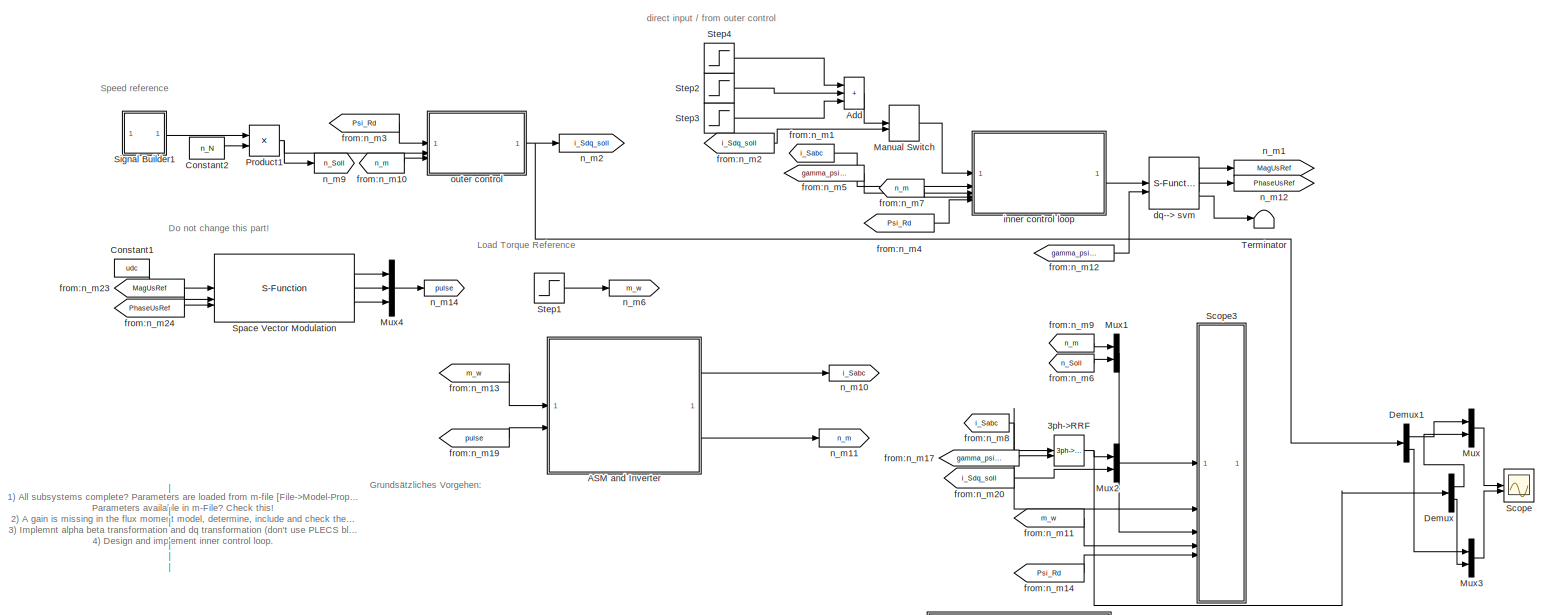
[diagram: root canvas - part 1/2, most of the canvas]
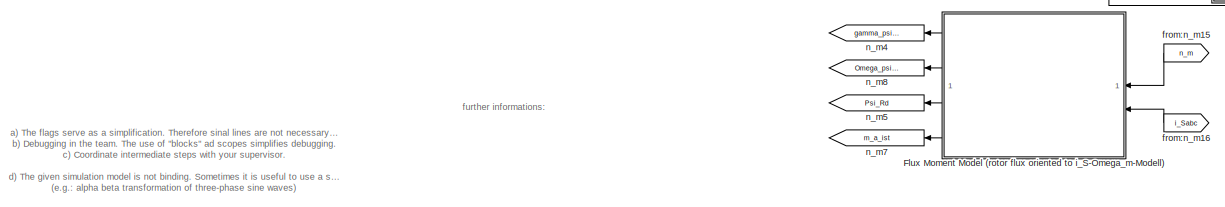
[diagram: root canvas - part 2/2, full width, bottom band]
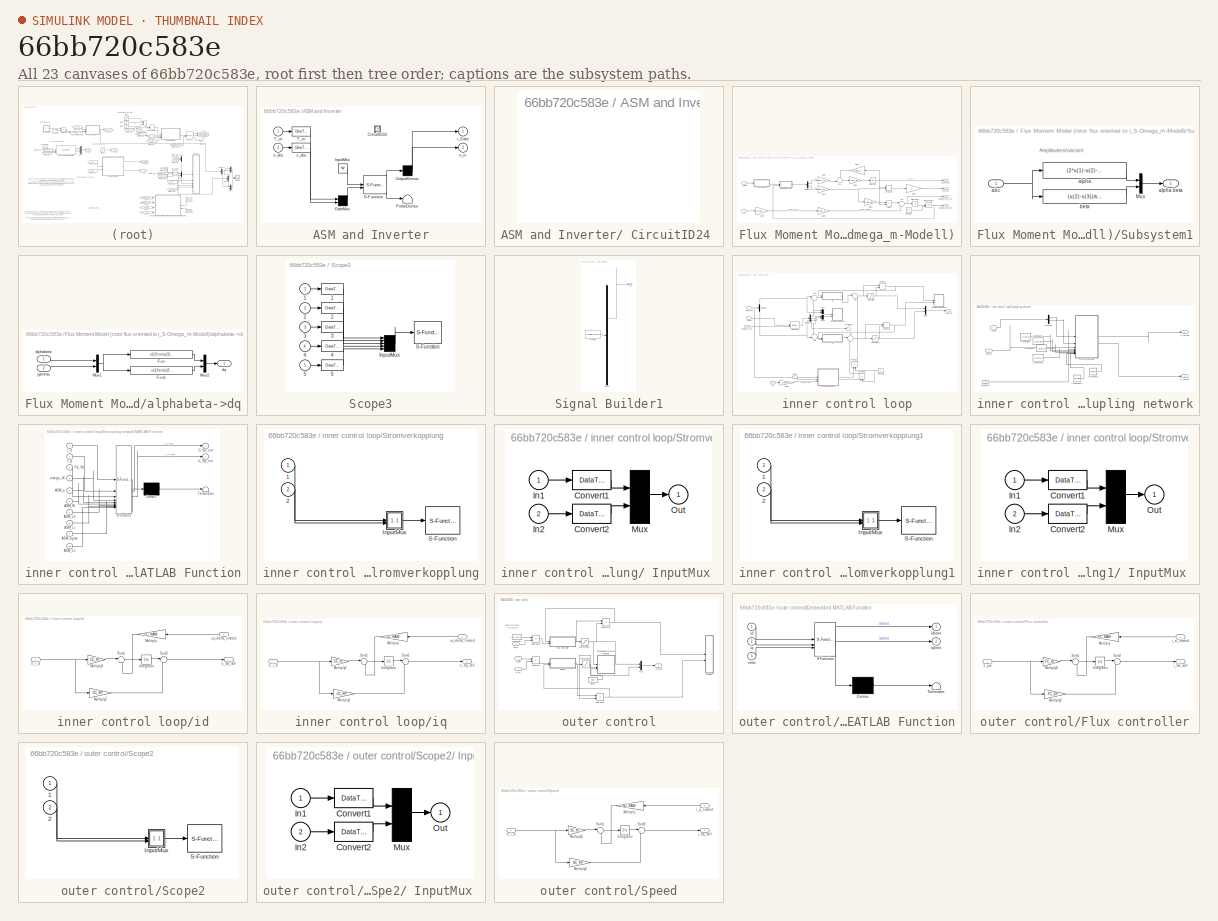
[diagram: thumbnail index - all 23 canvases of the model, root first then tree order]
MODEL mdl_66bb720c583e
KIND model
CONFIG AbsTol = auto
CONFIG EnableMultiTasking = on
CONFIG FixedStep = Ta
CONFIG MaxStep = 1e-5
CONFIG MinStep = auto
CONFIG RelTol = 1e-3
CONFIG SampleTimeConstraint = Unconstrained
CONFIG SolverName = ode45
CONFIG StartTime = 0.0
CONFIG StopTime = 0.5
BLOCK [Reference] 3ph->RRF  REF=plecslib_extras2/Transformations/3ph->RRF
  SourceBlock = plecslib_extras2/Transformations/3ph->RRF
  SourceProductName = PLECS Extras
  SourceType = Transformation 3ph->RRF
BLOCK [SubSystem] ASM and Inverter
  CopyFcn = plecs('sl', 203);
  DeleteFcn = plecs('sl', 205);
  DestroyFcn = plecs('sl', 207);
  ErrorFcn = plerrorfcn
  InitFcn = plecs('sl', 214);
  LoadFcn = plecs('sl', 200);
  NameChangeFcn = plecs('sl', 210);
  OpenFcn = plecs('sl', 202);
  PostSaveFcn = plecs('sl', 201);
  PreCopyFcn = plecs('sl', 216);
  PreSaveFcn = plecs('sl', 211);
  ShowPortLabels = FromPortBlockName
  StartFcn = plecs('sl', 208);
  StopFcn = plecs('sl', 209);
  UndoDeleteFcn = plecs('sl', 206);
BLOCK [SubSystem] ASM and Inverter/ CircuitID24 
BLOCK [Mux] ASM and Inverter/ GateMux 
  Inputs = [ 1 3 ]
BLOCK [Ground] ASM and Inverter/ InputMux 
BLOCK [Demux] ASM and Inverter/ OutputDemux 
  Outputs = [ 3 1 ]
BLOCK [Terminator] ASM and Inverter/ ProbeDemux 
BLOCK [S-Function] ASM and Inverter/ S-Function 
  EnableBusSupport = off
  FunctionName = plecs
  SFcnIsStateOwnerBlock = off
  SFunctionDeploymentMode = off
BLOCK [DataTypeConversion] ASM and Inverter/ T_m 
BLOCK [DataTypeConversion] ASM and Inverter/ s_abc 
BLOCK [Inport] ASM and Inverter/T_m
  PortDimensions = 1
BLOCK [Outport] ASM and Inverter/i_Sabc
  PortDimensions = 3
  VectorParamsAs1DForOutWhenUnconnected = off
BLOCK [Outport] ASM and Inverter/n_m
  Port = 2
  PortDimensions = 1
  VectorParamsAs1DForOutWhenUnconnected = off
BLOCK [Inport] ASM and Inverter/s_abc
  Port = 2
  PortDimensions = 3
BLOCK [Sum] Add
  IconShape = rectangular
  Inputs = +++
  NameLocation = top
BLOCK [Constant] Constant1
  Value = udc
BLOCK [Constant] Constant2
  Value = n_N
BLOCK [Demux] Demux
  Outputs = 2
BLOCK [Demux] Demux1
  Outputs = 2
BLOCK [SubSystem] Flux Moment Model (rotor flux oriented to i_S-Omega_m-Modell)
BLOCK [Sum] Flux Moment Model (rotor flux oriented to i_S-Omega_m-Modell)/Ad1
  Inputs = |++
BLOCK [Sum] Flux Moment Model (rotor flux oriented to i_S-Omega_m-Modell)/Ad4
  Inputs = -+|
BLOCK [Constant] Flux Moment Model (rotor flux oriented to i_S-Omega_m-Modell)/Constant
  Value = 2*pi
BLOCK [Demux] Flux Moment Model (rotor flux oriented to i_S-Omega_m-Modell)/Demux1
  Outputs = 2
BLOCK [Product] Flux Moment Model (rotor flux oriented to i_S-Omega_m-Modell)/Divide
  Inputs = */
BLOCK [Gain] Flux Moment Model (rotor flux oriented to i_S-Omega_m-Modell)/Gain
  Gain = ASM_Lh/ASM_Lr
BLOCK [Gain] Flux Moment Model (rotor flux oriented to i_S-Omega_m-Modell)/Gain1
  Gain = ASM_Lh/ASM_Lr
BLOCK [Gain] Flux Moment Model (rotor flux oriented to i_S-Omega_m-Modell)/Gain2
  Gain = 1/ASM_Lr
  NameLocation = top
BLOCK [Gain] Flux Moment Model (rotor flux oriented to i_S-Omega_m-Modell)/Gain3
  Gain = ASM_Rr
BLOCK [Gain] Flux Moment Model (rotor flux oriented to i_S-Omega_m-Modell)/Gain4
  Gain = 0
BLOCK [Gain] Flux Moment Model (rotor flux oriented to i_S-Omega_m-Modell)/Gain5
  Gain = ASM_p
BLOCK [Gain] Flux Moment Model (rotor flux oriented to i_S-Omega_m-Modell)/Gain6
  Gain = ASM_Rr
BLOCK [Gain] Flux Moment Model (rotor flux oriented to i_S-Omega_m-Modell)/Gain7
  Gain = (2*pi)/60
BLOCK [Integrator] Flux Moment Model (rotor flux oriented to i_S-Omega_m-Modell)/Integrator
  InitialCondition = 0.0001
BLOCK [Integrator] Flux Moment Model (rotor flux oriented to i_S-Omega_m-Modell)/Integrator1
  InitialCondition = 0.0001
BLOCK [Math] Flux Moment Model (rotor flux oriented to i_S-Omega_m-Modell)/Math Function1
  Operator = mod
  SignedPower = on
BLOCK [Outport] Flux Moment Model (rotor flux oriented to i_S-Omega_m-Modell)/Omega_psi_R_est
  Port = 2
  VectorParamsAs1DForOutWhenUnconnected = off
BLOCK [Product] Flux Moment Model (rotor flux oriented to i_S-Omega_m-Modell)/Product4
  RndMeth = Zero
BLOCK [SubSystem] Flux Moment Model (rotor flux oriented to i_S-Omega_m-Modell)/Subsystem1
BLOCK [Mux] Flux Moment Model (rotor flux oriented to i_S-Omega_m-Modell)/Subsystem1/Mux
  DisplayOption = bar
  Inputs = 2
BLOCK [Inport] Flux Moment Model (rotor flux oriented to i_S-Omega_m-Modell)/Subsystem1/abc
  PortDimensions = 3
BLOCK [Fcn] Flux Moment Model (rotor flux oriented to i_S-Omega_m-Modell)/Subsystem1/alpha
  Expr = (2*u(1)-u(2)-u(3))/3
BLOCK [Outport] Flux Moment Model (rotor flux oriented to i_S-Omega_m-Modell)/Subsystem1/alpha beta
  VectorParamsAs1DForOutWhenUnconnected = off
BLOCK [Fcn] Flux Moment Model (rotor flux oriented to i_S-Omega_m-Modell)/Subsystem1/beta
  Expr = (u(2)-u(3))/sqrt(3)
BLOCK [SubSystem] Flux Moment Model (rotor flux oriented to i_S-Omega_m-Modell)/alphabeta->dq
BLOCK [Fcn] Flux Moment Model (rotor flux oriented to i_S-Omega_m-Modell)/alphabeta->dq/Fcn
  Expr = u(1)*cos(u(3))+u(2)*sin(u(3))
BLOCK [Fcn] Flux Moment Model (rotor flux oriented to i_S-Omega_m-Modell)/alphabeta->dq/Fcn1
  Expr = -u(1)*sin(u(3))+u(2)*cos(u(3))
BLOCK [Mux] Flux Moment Model (rotor flux oriented to i_S-Omega_m-Modell)/alphabeta->dq/Mux1
  DisplayOption = bar
  Inputs = 2
BLOCK [Mux] Flux Moment Model (rotor flux oriented to i_S-Omega_m-Modell)/alphabeta->dq/Mux2
  DisplayOption = bar
  Inputs = 2
BLOCK [Inport] Flux Moment Model (rotor flux oriented to i_S-Omega_m-Modell)/alphabeta->dq/alphabeta
  NameLocation = top
BLOCK [Outport] Flux Moment Model (rotor flux oriented to i_S-Omega_m-Modell)/alphabeta->dq/dq
  VectorParamsAs1DForOutWhenUnconnected = off
BLOCK [Inport] Flux Moment Model (rotor flux oriented to i_S-Omega_m-Modell)/alphabeta->dq/gamma
  Port = 2
BLOCK [Outport] Flux Moment Model (rotor flux oriented to i_S-Omega_m-Modell)/gamma_psi_R_est
  VectorParamsAs1DForOutWhenUnconnected = off
BLOCK [Inport] Flux Moment Model (rotor flux oriented to i_S-Omega_m-Modell)/i_Sabc
  Port = 2
BLOCK [Outport] Flux Moment Model (rotor flux oriented to i_S-Omega_m-Modell)/m_a_est
  Port = 4
  VectorParamsAs1DForOutWhenUnconnected = off
BLOCK [Inport] Flux Moment Model (rotor flux oriented to i_S-Omega_m-Modell)/n_m
BLOCK [Outport] Flux Moment Model (rotor flux oriented to i_S-Omega_m-Modell)/psi_RA_est
  Port = 3
  VectorParamsAs1DForOutWhenUnconnected = off
BLOCK [ManualSwitch] Manual Switch
  CurrentSetting = 0
BLOCK [Mux] Mux
  DisplayOption = bar
  Inputs = 2
BLOCK [Mux] Mux1
  DisplayOption = bar
  Inputs = 2
BLOCK [Mux] Mux2
  DisplayOption = bar
  Inputs = 2
BLOCK [Mux] Mux3
  DisplayOption = bar
  Inputs = 2
BLOCK [Mux] Mux4
  DisplayOption = bar
  Inputs = 3
BLOCK [Product] Product1
  RndMeth = Zero
BLOCK [Scope] Scope
  Floating = off
  NumInputPorts = 2
  ScopeSpecificationString = Simulink.scopes.TimeScopeBlockCfg('CurrentConfiguration', extmgr.ConfigurationSet(extmgr.Configuration('Core','General UI',true),extmgr.Configuration('Core','Source UI',true),extmgr.Configuration('Sources','WiredSimulink',true),extmgr.Configuration('Visuals','Time Domain',true,'SerializedDisplays',{struct('MinYLimReal','-1.92601','MaxYLimReal','9.78999','YLabelReal','','MinYLimMag','0.00000','MaxY...<+2259ch>
BLOCK [SubSystem] Scope3
  CopyFcn = plecs('sl', 303);
  DeleteFcn = plecs('sl', 305);
  DestroyFcn = plecs('sl', 307);
  ErrorFcn = plerrorfcn
  InitFcn = plecs('sl', 314);
  LoadFcn = plecs('sl', 300);
  NameChangeFcn = plecs('sl', 310);
  OpenFcn = plecs('sl', 302);
  PreSaveFcn = plecs('sl', 311);
  StartFcn = plecs('sl', 308);
  StopFcn = plecs('sl', 309);
  UndoDeleteFcn = plecs('sl', 306);
BLOCK [DataTypeConversion] Scope3/ 1 
BLOCK [DataTypeConversion] Scope3/ 2 
BLOCK [DataTypeConversion] Scope3/ 3 
BLOCK [DataTypeConversion] Scope3/ 4 
BLOCK [DataTypeConversion] Scope3/ 5 
BLOCK [Mux] Scope3/ InputMux 
  Inputs = 5
BLOCK [S-Function] Scope3/ S-Function 
  EnableBusSupport = off
  FunctionName = plecs
  SFcnIsStateOwnerBlock = off
  SFunctionDeploymentMode = off
BLOCK [Inport] Scope3/1
BLOCK [Inport] Scope3/2
  Port = 2
BLOCK [Inport] Scope3/3
  Port = 3
BLOCK [Inport] Scope3/4
  Port = 4
BLOCK [Inport] Scope3/5
  Port = 5
BLOCK [SubSystem] Signal Builder1
  ClipboardFcn = sigbuilder_block('clipboard');
  CloseFcn = sigbuilder_block('close');
  ContinueFcn = sigbuilder_block('continue')
  CopyFcn = sigbuilder_block('copy');
  DeleteFcn = sigbuilder_block('delete');
  LoadFcn = sigbuilder_block('load');
  MaskHideContents = on
  ModelCloseFcn = sigbuilder_block('modelClose');
  NameChangeFcn = sigbuilder_block('namechange');
  OpenFcn = sigbuilder_block('open',[29.25 172.2 550.5 395.55 ]);
  PauseFcn = sigbuilder_block('pause')
  PreSaveFcn = sigbuilder_block('preSave');
  StartFcn = sigbuilder_block('start');
  StopFcn = sigbuilder_block('stop');
  Tag = STV Subsys
BLOCK [Demux] Signal Builder1/Demux
  DisplayOption = none
  Outputs = 1
  Tag = STV Demux
BLOCK [FromWorkspace] Signal Builder1/FromWs
  Tag = STV FromWs
  VariableName = tuvar
BLOCK [Outport] Signal Builder1/n%
  Tag = STV Outport
  VectorParamsAs1DForOutWhenUnconnected = off
BLOCK [S-Function] Space Vector Modulation
  EnableBusSupport = off
  FunctionName = s_svm
  Parameters = f_sw*100,f_sw
  SFcnIsStateOwnerBlock = off
  SFunctionDeploymentMode = off
BLOCK [Step] Step1
  After = 2
  SampleTime = 0
  Time = 9
BLOCK [Step] Step2
  After = [1.5 2]
  Before = [1.5 0]
  SampleTime = 0
  Time = 0.1
BLOCK [Step] Step3
  After = [0 -2]
  Before = [0 0]
  SampleTime = 0
  Time = 0.2
BLOCK [Step] Step4
  After = [0 0]
  Before = [-1.5 0]
  SampleTime = 0
  Time = 0.05
BLOCK [Terminator] Terminator
BLOCK [S-Function] dq--> svm
  EnableBusSupport = off
  FunctionName = s_dq_svm_transformation
  NameLocation = top
  Parameters = f_sw
  SFcnIsStateOwnerBlock = off
  SFunctionDeploymentMode = off
BLOCK [From] from:n_m1
  GotoTag = i_Sabc
BLOCK [From] from:n_m10
  GotoTag = n_m
BLOCK [From] from:n_m11
  GotoTag = m_w
BLOCK [From] from:n_m12
  GotoTag = gamma_psi_R
BLOCK [From] from:n_m13
  GotoTag = m_w
BLOCK [From] from:n_m14
  GotoTag = Psi_Rd
BLOCK [From] from:n_m15
  GotoTag = n_m
  NameLocation = top
BLOCK [From] from:n_m16
  GotoTag = i_Sabc
  NameLocation = top
BLOCK [From] from:n_m17
  GotoTag = gamma_psi_R
BLOCK [From] from:n_m19
  GotoTag = pulse
BLOCK [From] from:n_m2
  GotoTag = i_Sdq_soll
BLOCK [From] from:n_m20
  GotoTag = i_Sdq_soll
BLOCK [From] from:n_m23
  GotoTag = MagUsRef
BLOCK [From] from:n_m24
  GotoTag = PhaseUsRef
BLOCK [From] from:n_m3
  GotoTag = Psi_Rd
BLOCK [From] from:n_m4
  GotoTag = Psi_Rd
BLOCK [From] from:n_m5
  GotoTag = gamma_psi_R
BLOCK [From] from:n_m6
  GotoTag = n_Soll
BLOCK [From] from:n_m7
  GotoTag = n_m
BLOCK [From] from:n_m8
  GotoTag = i_Sabc
BLOCK [From] from:n_m9
  GotoTag = n_m
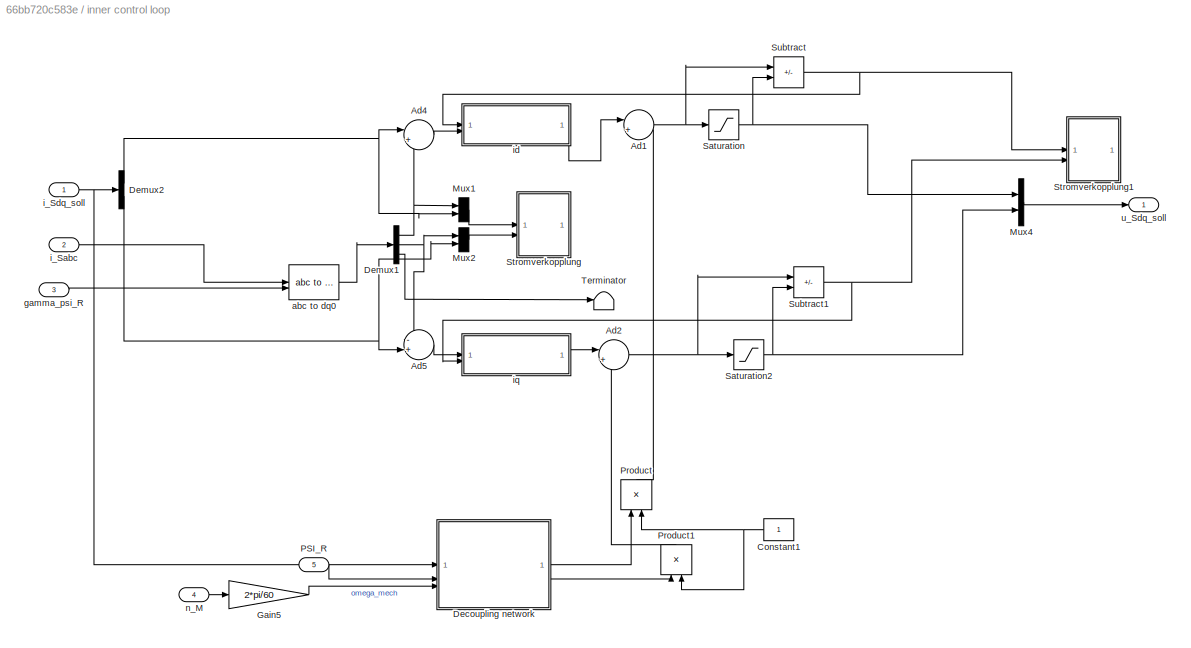
BLOCK [SubSystem] inner control loop
BLOCK [Sum] inner control loop/Ad1
  Inputs = |++
BLOCK [Sum] inner control loop/Ad2
  Inputs = |++
BLOCK [Sum] inner control loop/Ad4
  Inputs = |+-
BLOCK [Sum] inner control loop/Ad5
  Inputs = -+|
BLOCK [Constant] inner control loop/Constant1
  NameLocation = top
BLOCK [SubSystem] inner control loop/Decoupling network
BLOCK [Constant] inner control loop/Decoupling network/Constant
  Value = ASM_p
BLOCK [Constant] inner control loop/Decoupling network/Constant1
  Value = ASM_Rr
BLOCK [Constant] inner control loop/Decoupling network/Constant2
  Value = ASM_Lh
BLOCK [Constant] inner control loop/Decoupling network/Constant3
  Value = ASM_Lr
BLOCK [Constant] inner control loop/Decoupling network/Constant5
  Value = ASM_sigma
BLOCK [Constant] inner control loop/Decoupling network/Constant6
  Value = ASM_Ls
BLOCK [Demux] inner control loop/Decoupling network/Demux
  Outputs = 2
BLOCK [Inport] inner control loop/Decoupling network/I_S_dq
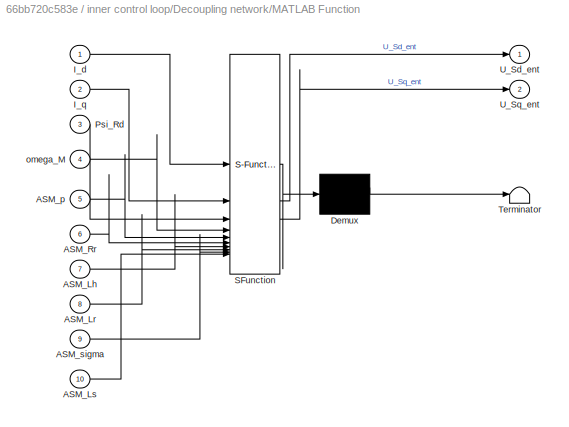
BLOCK [SubSystem] inner control loop/Decoupling network/MATLAB Function
  ErrorFcn = Stateflow.Translate.translate
  PermitHierarchicalResolution = ExplicitOnly
  SFBlockType = MATLAB Function
  TreatAsAtomicUnit = on
BLOCK [Demux] inner control loop/Decoupling network/MATLAB Function/ Demux 
  Outputs = 1
BLOCK [S-Function] inner control loop/Decoupling network/MATLAB Function/ SFunction 
  EnableBusSupport = on
  FunctionName = sf_sfun
  PortCounts = [10 3]
  SFcnIsStateOwnerBlock = off
  SFunctionDeploymentMode = off
  Tag = Stateflow S-Function 2
BLOCK [Terminator] inner control loop/Decoupling network/MATLAB Function/ Terminator 
BLOCK [Inport] inner control loop/Decoupling network/MATLAB Function/ASM_Lh
  Port = 7
BLOCK [Inport] inner control loop/Decoupling network/MATLAB Function/ASM_Lr
  Port = 8
BLOCK [Inport] inner control loop/Decoupling network/MATLAB Function/ASM_Ls
  Port = 10
BLOCK [Inport] inner control loop/Decoupling network/MATLAB Function/ASM_Rr
  Port = 6
BLOCK [Inport] inner control loop/Decoupling network/MATLAB Function/ASM_p
  Port = 5
BLOCK [Inport] inner control loop/Decoupling network/MATLAB Function/ASM_sigma
  Port = 9
BLOCK [Inport] inner control loop/Decoupling network/MATLAB Function/I_d
BLOCK [Inport] inner control loop/Decoupling network/MATLAB Function/I_q
  Port = 2
BLOCK [Inport] inner control loop/Decoupling network/MATLAB Function/Psi_Rd
  Port = 3
BLOCK [Outport] inner control loop/Decoupling network/MATLAB Function/U_Sd_ent
BLOCK [Outport] inner control loop/Decoupling network/MATLAB Function/U_Sq_ent
  Port = 2
BLOCK [Inport] inner control loop/Decoupling network/MATLAB Function/omega_M
  Port = 4
BLOCK [Inport] inner control loop/Decoupling network/Psi_Rd
  Port = 2
BLOCK [Outport] inner control loop/Decoupling network/U_Sd,ent
  VectorParamsAs1DForOutWhenUnconnected = off
BLOCK [Outport] inner control loop/Decoupling network/U_Sq,ent
  Port = 2
  VectorParamsAs1DForOutWhenUnconnected = off
BLOCK [Inport] inner control loop/Decoupling network/omega_M
  Port = 3
BLOCK [Demux] inner control loop/Demux1
  Outputs = 3
BLOCK [Demux] inner control loop/Demux2
  Outputs = 2
BLOCK [Gain] inner control loop/Gain5
  Gain = 2*pi/60
BLOCK [Mux] inner control loop/Mux1
  DisplayOption = bar
  Inputs = [1 1]
BLOCK [Mux] inner control loop/Mux2
  DisplayOption = bar
  Inputs = [1 1]
BLOCK [Mux] inner control loop/Mux4
  DisplayOption = bar
  Inputs = 2
BLOCK [Inport] inner control loop/PSI_R
  Port = 5
BLOCK [Product] inner control loop/Product
  NameLocation = right
  RndMeth = Zero
BLOCK [Product] inner control loop/Product1
  NameLocation = right
  RndMeth = Zero
BLOCK [Saturate] inner control loop/Saturation
  LowerLimit = -umax
  UpperLimit = umax
BLOCK [Saturate] inner control loop/Saturation2
  LowerLimit = -umax
  UpperLimit = umax
BLOCK [SubSystem] inner control loop/Stromverkopplung
  CopyFcn = plecs('sl', 303);
  DeleteFcn = plecs('sl', 305);
  DestroyFcn = plecs('sl', 307);
  ErrorFcn = plerrorfcn
  InitFcn = plecs('sl', 314);
  LoadFcn = plecs('sl', 300);
  NameChangeFcn = plecs('sl', 310);
  OpenFcn = plecs('sl', 302);
  PreSaveFcn = plecs('sl', 311);
  StartFcn = plecs('sl', 308);
  StopFcn = plecs('sl', 309);
  UndoDeleteFcn = plecs('sl', 306);
BLOCK [SubSystem] inner control loop/Stromverkopplung/ InputMux 
BLOCK [DataTypeConversion] inner control loop/Stromverkopplung/ InputMux /Convert1
BLOCK [DataTypeConversion] inner control loop/Stromverkopplung/ InputMux /Convert2
BLOCK [Inport] inner control loop/Stromverkopplung/ InputMux /In1
BLOCK [Inport] inner control loop/Stromverkopplung/ InputMux /In2
  Port = 2
BLOCK [Mux] inner control loop/Stromverkopplung/ InputMux /Mux
  Inputs = 2
BLOCK [Outport] inner control loop/Stromverkopplung/ InputMux /Out
  VectorParamsAs1DForOutWhenUnconnected = off
BLOCK [S-Function] inner control loop/Stromverkopplung/ S-Function 
  EnableBusSupport = off
  FunctionName = plecs
  SFcnIsStateOwnerBlock = off
  SFunctionDeploymentMode = off
BLOCK [Inport] inner control loop/Stromverkopplung/1
BLOCK [Inport] inner control loop/Stromverkopplung/2
  Port = 2
BLOCK [SubSystem] inner control loop/Stromverkopplung1
  CopyFcn = plecs('sl', 303);
  DeleteFcn = plecs('sl', 305);
  DestroyFcn = plecs('sl', 307);
  ErrorFcn = plerrorfcn
  InitFcn = plecs('sl', 314);
  LoadFcn = plecs('sl', 300);
  NameChangeFcn = plecs('sl', 310);
  OpenFcn = plecs('sl', 302);
  PreSaveFcn = plecs('sl', 311);
  StartFcn = plecs('sl', 308);
  StopFcn = plecs('sl', 309);
  UndoDeleteFcn = plecs('sl', 306);
BLOCK [SubSystem] inner control loop/Stromverkopplung1/ InputMux 
BLOCK [DataTypeConversion] inner control loop/Stromverkopplung1/ InputMux /Convert1
BLOCK [DataTypeConversion] inner control loop/Stromverkopplung1/ InputMux /Convert2
BLOCK [Inport] inner control loop/Stromverkopplung1/ InputMux /In1
BLOCK [Inport] inner control loop/Stromverkopplung1/ InputMux /In2
  Port = 2
BLOCK [Mux] inner control loop/Stromverkopplung1/ InputMux /Mux
  Inputs = 2
BLOCK [Outport] inner control loop/Stromverkopplung1/ InputMux /Out
  VectorParamsAs1DForOutWhenUnconnected = off
BLOCK [S-Function] inner control loop/Stromverkopplung1/ S-Function 
  EnableBusSupport = off
  FunctionName = plecs
  SFcnIsStateOwnerBlock = off
  SFunctionDeploymentMode = off
BLOCK [Inport] inner control loop/Stromverkopplung1/1
BLOCK [Inport] inner control loop/Stromverkopplung1/2
  Port = 2
BLOCK [Sum] inner control loop/Subtract
  IconShape = rectangular
  Inputs = +-
BLOCK [Sum] inner control loop/Subtract1
  IconShape = rectangular
  Inputs = +-
BLOCK [Terminator] inner control loop/Terminator
BLOCK [Reference] inner control loop/abc to dq0  REF=spsabctodq0Lib/abc to dq0
  LibrarySourceBlock = sps_lib/Control/abc to dq0
  SourceBlock = spsabctodq0Lib/abc to dq0
  SourceType = abc to dq0 Transformation
BLOCK [Inport] inner control loop/gamma_psi_R
  NameLocation = top
  Port = 3
BLOCK [Inport] inner control loop/i_Sabc
  NameLocation = top
  Port = 2
BLOCK [Inport] inner control loop/i_Sdq_soll
BLOCK [SubSystem] inner control loop/id
BLOCK [Integrator] inner control loop/id/Integrator
BLOCK [Gain] inner control loop/id/Multiply
  Gain = CC_KAW
  NameLocation = top
BLOCK [Gain] inner control loop/id/Multiply2
  Gain = CC_KP
BLOCK [Gain] inner control loop/id/Multiply3
  Gain = CC_KI
BLOCK [Sum] inner control loop/id/Sum1
  Inputs = |+-
BLOCK [Sum] inner control loop/id/Sum2
  Inputs = |++
BLOCK [Inport] inner control loop/id/e_i_d
  Port = 2
BLOCK [Outport] inner control loop/id/u_Sd_soll
  VectorParamsAs1DForOutWhenUnconnected = off
BLOCK [Inport] inner control loop/id/us_delta_limited
  NameLocation = top
BLOCK [SubSystem] inner control loop/iq
BLOCK [Integrator] inner control loop/iq/Integrator
BLOCK [Gain] inner control loop/iq/Multiply
  Gain = CC_KAW
  NameLocation = top
BLOCK [Gain] inner control loop/iq/Multiply2
  Gain = CC_KP
BLOCK [Gain] inner control loop/iq/Multiply3
  Gain = CC_KI
BLOCK [Sum] inner control loop/iq/Sum1
  Inputs = |+-
BLOCK [Sum] inner control loop/iq/Sum2
  Inputs = |++
BLOCK [Inport] inner control loop/iq/e_i_d
BLOCK [Outport] inner control loop/iq/u_Sq_soll
  VectorParamsAs1DForOutWhenUnconnected = off
BLOCK [Inport] inner control loop/iq/us_delta_limited
  NameLocation = top
  Port = 2
BLOCK [Inport] inner control loop/n_M
  Port = 4
BLOCK [Outport] inner control loop/u_Sdq_soll
  VectorParamsAs1DForOutWhenUnconnected = off
BLOCK [Goto] n_m1
  GotoTag = MagUsRef
BLOCK [Goto] n_m10
  GotoTag = i_Sabc
BLOCK [Goto] n_m11
  GotoTag = n_m
BLOCK [Goto] n_m12
  GotoTag = PhaseUsRef
BLOCK [Goto] n_m14
  GotoTag = pulse
BLOCK [Goto] n_m2
  GotoTag = i_Sdq_soll
BLOCK [Goto] n_m4
  GotoTag = gamma_psi_R
  NameLocation = top
BLOCK [Goto] n_m5
  GotoTag = Psi_Rd
  NameLocation = top
BLOCK [Goto] n_m6
  GotoTag = m_w
BLOCK [Goto] n_m7
  GotoTag = m_a_ist
  NameLocation = top
BLOCK [Goto] n_m8
  GotoTag = Omega_psi_R
  NameLocation = top
BLOCK [Goto] n_m9
  GotoTag = n_Soll
BLOCK [SubSystem] outer control
BLOCK [Constant] outer control/Constant1
  Value = ASM_PSI_RN
BLOCK [SubSystem] outer control/Embedded MATLAB Function
  Commented = on
  ErrorFcn = Stateflow.Translate.translate
  PermitHierarchicalResolution = ExplicitOnly
  SFBlockType = MATLAB Function
  TreatAsAtomicUnit = on
BLOCK [Demux] outer control/Embedded MATLAB Function/ Demux 
  Outputs = 1
BLOCK [S-Function] outer control/Embedded MATLAB Function/ SFunction 
  EnableBusSupport = on
  FunctionName = sf_sfun
  PortCounts = [3 3]
  SFcnIsStateOwnerBlock = off
  SFunctionDeploymentMode = off
  Tag = Stateflow S-Function 1
BLOCK [Terminator] outer control/Embedded MATLAB Function/ Terminator 
BLOCK [Inport] outer control/Embedded MATLAB Function/id
BLOCK [Outport] outer control/Embedded MATLAB Function/idlimit
  VectorParamsAs1DForOutWhenUnconnected = off
BLOCK [Inport] outer control/Embedded MATLAB Function/imax
  Port = 3
BLOCK [Inport] outer control/Embedded MATLAB Function/iq
  Port = 2
BLOCK [Outport] outer control/Embedded MATLAB Function/iqlimit
  Port = 2
  VectorParamsAs1DForOutWhenUnconnected = off
BLOCK [SubSystem] outer control/Flux controller
BLOCK [Integrator] outer control/Flux controller/Integrator
BLOCK [Gain] outer control/Flux controller/Multiply
  Gain = FC_KAW
  NameLocation = top
BLOCK [Gain] outer control/Flux controller/Multiply2
  Gain = FC_KP
BLOCK [Gain] outer control/Flux controller/Multiply3
  Gain = FC_KI
BLOCK [Sum] outer control/Flux controller/Sum1
  Inputs = |+-
BLOCK [Sum] outer control/Flux controller/Sum2
  Inputs = |++
BLOCK [Inport] outer control/Flux controller/e_psi
  Port = 2
BLOCK [Outport] outer control/Flux controller/i_Sd_soll
  VectorParamsAs1DForOutWhenUnconnected = off
BLOCK [Inport] outer control/Flux controller/i_d_limited
  NameLocation = top
BLOCK [Mux] outer control/Mux
  DisplayOption = bar
  Inputs = [1 1]
BLOCK [Saturate] outer control/Saturation1
  LowerLimit = -imax
  UpperLimit = imax
BLOCK [Saturate] outer control/Saturation2
  LowerLimit = -imax
  UpperLimit = imax
BLOCK [SubSystem] outer control/Scope2
  CopyFcn = plecs('sl', 303);
  DeleteFcn = plecs('sl', 305);
  DestroyFcn = plecs('sl', 307);
  ErrorFcn = plerrorfcn
  InitFcn = plecs('sl', 314);
  LoadFcn = plecs('sl', 300);
  NameChangeFcn = plecs('sl', 310);
  OpenFcn = plecs('sl', 302);
  PreSaveFcn = plecs('sl', 311);
  StartFcn = plecs('sl', 308);
  StopFcn = plecs('sl', 309);
  UndoDeleteFcn = plecs('sl', 306);
BLOCK [SubSystem] outer control/Scope2/ InputMux 
BLOCK [DataTypeConversion] outer control/Scope2/ InputMux /Convert1
BLOCK [DataTypeConversion] outer control/Scope2/ InputMux /Convert2
BLOCK [Inport] outer control/Scope2/ InputMux /In1
BLOCK [Inport] outer control/Scope2/ InputMux /In2
  Port = 2
BLOCK [Mux] outer control/Scope2/ InputMux /Mux
  Inputs = 2
BLOCK [Outport] outer control/Scope2/ InputMux /Out
  VectorParamsAs1DForOutWhenUnconnected = off
BLOCK [S-Function] outer control/Scope2/ S-Function 
  EnableBusSupport = off
  FunctionName = plecs
  SFcnIsStateOwnerBlock = off
  SFunctionDeploymentMode = off
BLOCK [Inport] outer control/Scope2/1
BLOCK [Inport] outer control/Scope2/2
  Port = 2
BLOCK [SubSystem] outer control/Speed
BLOCK [Integrator] outer control/Speed/Integrator
BLOCK [Gain] outer control/Speed/Multiply
  Gain = SC_KAW
  NameLocation = top
BLOCK [Gain] outer control/Speed/Multiply2
  Gain = SC_KP
BLOCK [Gain] outer control/Speed/Multiply3
  Gain = SC_KI
BLOCK [Sum] outer control/Speed/Sum1
  Inputs = |+-
BLOCK [Sum] outer control/Speed/Sum2
  Inputs = |++
BLOCK [Inport] outer control/Speed/e_i_d
BLOCK [Outport] outer control/Speed/i_Sq_soll
  VectorParamsAs1DForOutWhenUnconnected = off
BLOCK [Inport] outer control/Speed/i_q_limited
  NameLocation = top
  Port = 2
BLOCK [Sum] outer control/Subtract
  IconShape = rectangular
  Inputs = +-
BLOCK [Sum] outer control/Subtract1
  IconShape = rectangular
  Inputs = +-
BLOCK [Sum] outer control/Subtract2
  IconShape = rectangular
  Inputs = +-
BLOCK [Sum] outer control/Subtract3
  IconShape = rectangular
  Inputs = +-
BLOCK [Outport] outer control/i_dq_soll
  InitialOutput = [0 0]
  VectorParamsAs1DForOutWhenUnconnected = off
BLOCK [Constant] outer control/imax
  Commented = on
  Value = imax
BLOCK [Inport] outer control/n_Ist
  Port = 3
BLOCK [Inport] outer control/n_Soll
  Port = 2
BLOCK [Inport] outer control/psi_R
ANNOTATION (root): 1) All subsystems complete? Parameters are loaded from m-file [File->Model-Properties->Callbacks]. Parameters available in m-File? Check this! 2) A gain is missing in the flux moment model, determine, include and check the factor 3) Implemnt alpha beta transformation and dq transformation (don't use PLECS blocks!) 4) Design and implement inner control loop. 5) Check inner control loop, implement d...<+235ch>
ANNOTATION (root): Do not change this part!
ANNOTATION (root): Grundsätzliches Vorgehen:
ANNOTATION (root): Load Torque Reference
ANNOTATION (root): Speed reference
ANNOTATION (root): a) The flags serve as a simplification. Therefore sinal lines are not necessary. This gives a better overviewt! b) Debugging in the team. The use of "blocks" ad scopes simplifies debugging. c) Coordinate intermediate steps with your supervisor. d) The given simulation model is not binding. Sometimes it is useful to use a smaller model for verification (e.g.: alpha beta transformation of three-phas...<+13ch>
ANNOTATION (root): direct input / from outer control
ANNOTATION (root): further informations:
ANNOTATION (root): | | | | | | | | | | | | | |
ANNOTATION Flux Moment Model (rotor flux oriented to i_S-Omega_m-Modell)/Subsystem1: Amplitudeninvariant
ANNOTATION outer control: Sollwertvorgabe Rotorfluss
NET 3ph->RRF:1 -> Demux:1, Mux2:1
LINE ASM and Inverter:1 -> n_m10:1
LINE ASM and Inverter:2 -> n_m11:1
LINE Add:1 -> Manual Switch:1
LINE Constant1:1 -> Space Vector Modulation:1
LINE Constant2:1 -> Product1:2
LINE Demux1:1 -> Mux:1
LINE Demux1:2 -> Mux3:1
LINE Demux:1 -> Mux:2
LINE Demux:2 -> Mux3:2
NET Flux Moment Model (rotor flux oriented to i_S-Omega_m-Modell)/Ad1:1 -> Flux Moment Model (rotor flux oriented to i_S-Omega_m-Modell)/Integrator1:1, Flux Moment Model (rotor flux oriented to i_S-Omega_m-Modell)/Omega_psi_R_est:1
LINE Flux Moment Model (rotor flux oriented to i_S-Omega_m-Modell)/Ad4:1 -> Flux Moment Model (rotor flux oriented to i_S-Omega_m-Modell)/Gain3:1
LINE Flux Moment Model (rotor flux oriented to i_S-Omega_m-Modell)/Constant:1 -> Flux Moment Model (rotor flux oriented to i_S-Omega_m-Modell)/Math Function1:2
LINE Flux Moment Model (rotor flux oriented to i_S-Omega_m-Modell)/Demux1:1 -> Flux Moment Model (rotor flux oriented to i_S-Omega_m-Modell)/Gain:1
LINE Flux Moment Model (rotor flux oriented to i_S-Omega_m-Modell)/Demux1:2 -> Flux Moment Model (rotor flux oriented to i_S-Omega_m-Modell)/Gain1:1
LINE Flux Moment Model (rotor flux oriented to i_S-Omega_m-Modell)/Divide:1 -> Flux Moment Model (rotor flux oriented to i_S-Omega_m-Modell)/Ad1:1
NET Flux Moment Model (rotor flux oriented to i_S-Omega_m-Modell)/Gain1:1 -> Flux Moment Model (rotor flux oriented to i_S-Omega_m-Modell)/Gain6:1, Flux Moment Model (rotor flux oriented to i_S-Omega_m-Modell)/Product4:2
LINE Flux Moment Model (rotor flux oriented to i_S-Omega_m-Modell)/Gain2:1 -> Flux Moment Model (rotor flux oriented to i_S-Omega_m-Modell)/Ad4:1
LINE Flux Moment Model (rotor flux oriented to i_S-Omega_m-Modell)/Gain3:1 -> Flux Moment Model (rotor flux oriented to i_S-Omega_m-Modell)/Integrator:1
LINE Flux Moment Model (rotor flux oriented to i_S-Omega_m-Modell)/Gain4:1 -> Flux Moment Model (rotor flux oriented to i_S-Omega_m-Modell)/m_a_est:1
LINE Flux Moment Model (rotor flux oriented to i_S-Omega_m-Modell)/Gain5:1 -> Flux Moment Model (rotor flux oriented to i_S-Omega_m-Modell)/Ad1:2
LINE Flux Moment Model (rotor flux oriented to i_S-Omega_m-Modell)/Gain6:1 -> Flux Moment Model (rotor flux oriented to i_S-Omega_m-Modell)/Divide:1
LINE Flux Moment Model (rotor flux oriented to i_S-Omega_m-Modell)/Gain7:1 -> Flux Moment Model (rotor flux oriented to i_S-Omega_m-Modell)/Gain5:1
LINE Flux Moment Model (rotor flux oriented to i_S-Omega_m-Modell)/Gain:1 -> Flux Moment Model (rotor flux oriented to i_S-Omega_m-Modell)/Ad4:2
LINE Flux Moment Model (rotor flux oriented to i_S-Omega_m-Modell)/Integrator1:1 -> Flux Moment Model (rotor flux oriented to i_S-Omega_m-Modell)/Math Function1:1
NET Flux Moment Model (rotor flux oriented to i_S-Omega_m-Modell)/Integrator:1 -> Flux Moment Model (rotor flux oriented to i_S-Omega_m-Modell)/Divide:2, Flux Moment Model (rotor flux oriented to i_S-Omega_m-Modell)/Gain2:1, Flux Moment Model (rotor flux oriented to i_S-Omega_m-Modell)/Product4:1, Flux Moment Model (rotor flux oriented to i_S-Omega_m-Modell)/psi_RA_est:1
NET Flux Moment Model (rotor flux oriented to i_S-Omega_m-Modell)/Math Function1:1 -> Flux Moment Model (rotor flux oriented to i_S-Omega_m-Modell)/alphabeta->dq:2, Flux Moment Model (rotor flux oriented to i_S-Omega_m-Modell)/gamma_psi_R_est:1
LINE Flux Moment Model (rotor flux oriented to i_S-Omega_m-Modell)/Product4:1 -> Flux Moment Model (rotor flux oriented to i_S-Omega_m-Modell)/Gain4:1
LINE Flux Moment Model (rotor flux oriented to i_S-Omega_m-Modell)/Subsystem1/Mux:1 -> Flux Moment Model (rotor flux oriented to i_S-Omega_m-Modell)/Subsystem1/alpha beta:1
NET Flux Moment Model (rotor flux oriented to i_S-Omega_m-Modell)/Subsystem1/abc:1 -> Flux Moment Model (rotor flux oriented to i_S-Omega_m-Modell)/Subsystem1/alpha:1, Flux Moment Model (rotor flux oriented to i_S-Omega_m-Modell)/Subsystem1/beta:1
LINE Flux Moment Model (rotor flux oriented to i_S-Omega_m-Modell)/Subsystem1/alpha:1 -> Flux Moment Model (rotor flux oriented to i_S-Omega_m-Modell)/Subsystem1/Mux:1
LINE Flux Moment Model (rotor flux oriented to i_S-Omega_m-Modell)/Subsystem1/beta:1 -> Flux Moment Model (rotor flux oriented to i_S-Omega_m-Modell)/Subsystem1/Mux:2
LINE Flux Moment Model (rotor flux oriented to i_S-Omega_m-Modell)/Subsystem1:1 -> Flux Moment Model (rotor flux oriented to i_S-Omega_m-Modell)/alphabeta->dq:1
LINE Flux Moment Model (rotor flux oriented to i_S-Omega_m-Modell)/alphabeta->dq/Fcn1:1 -> Flux Moment Model (rotor flux oriented to i_S-Omega_m-Modell)/alphabeta->dq/Mux2:2
LINE Flux Moment Model (rotor flux oriented to i_S-Omega_m-Modell)/alphabeta->dq/Fcn:1 -> Flux Moment Model (rotor flux oriented to i_S-Omega_m-Modell)/alphabeta->dq/Mux2:1
NET Flux Moment Model (rotor flux oriented to i_S-Omega_m-Modell)/alphabeta->dq/Mux1:1 -> Flux Moment Model (rotor flux oriented to i_S-Omega_m-Modell)/alphabeta->dq/Fcn1:1, Flux Moment Model (rotor flux oriented to i_S-Omega_m-Modell)/alphabeta->dq/Fcn:1
LINE Flux Moment Model (rotor flux oriented to i_S-Omega_m-Modell)/alphabeta->dq/Mux2:1 -> Flux Moment Model (rotor flux oriented to i_S-Omega_m-Modell)/alphabeta->dq/dq:1
LINE Flux Moment Model (rotor flux oriented to i_S-Omega_m-Modell)/alphabeta->dq/alphabeta:1 -> Flux Moment Model (rotor flux oriented to i_S-Omega_m-Modell)/alphabeta->dq/Mux1:1
LINE Flux Moment Model (rotor flux oriented to i_S-Omega_m-Modell)/alphabeta->dq/gamma:1 -> Flux Moment Model (rotor flux oriented to i_S-Omega_m-Modell)/alphabeta->dq/Mux1:2
LINE Flux Moment Model (rotor flux oriented to i_S-Omega_m-Modell)/alphabeta->dq:1 -> Flux Moment Model (rotor flux oriented to i_S-Omega_m-Modell)/Demux1:1
LINE Flux Moment Model (rotor flux oriented to i_S-Omega_m-Modell)/i_Sabc:1 -> Flux Moment Model (rotor flux oriented to i_S-Omega_m-Modell)/Subsystem1:1
LINE Flux Moment Model (rotor flux oriented to i_S-Omega_m-Modell)/n_m:1 -> Flux Moment Model (rotor flux oriented to i_S-Omega_m-Modell)/Gain7:1
LINE Flux Moment Model (rotor flux oriented to i_S-Omega_m-Modell):1 -> n_m4:1
LINE Flux Moment Model (rotor flux oriented to i_S-Omega_m-Modell):2 -> n_m8:1
LINE Flux Moment Model (rotor flux oriented to i_S-Omega_m-Modell):3 -> n_m5:1
LINE Flux Moment Model (rotor flux oriented to i_S-Omega_m-Modell):4 -> n_m7:1
LINE Manual Switch:1 -> inner control loop:1
LINE Mux1:1 -> Scope3:1
LINE Mux2:1 -> Scope3:3
LINE Mux3:1 -> Scope:2
LINE Mux4:1 -> n_m14:1
LINE Mux:1 -> Scope:1
NET Product1:1 -> n_m9:1, outer control:2
LINE Scope3/ 1 :1 -> Scope3/ InputMux :1
LINE Scope3/ 2 :1 -> Scope3/ InputMux :2
LINE Scope3/ 3 :1 -> Scope3/ InputMux :3
LINE Scope3/ 4 :1 -> Scope3/ InputMux :4
LINE Scope3/ 5 :1 -> Scope3/ InputMux :5
LINE Scope3/ InputMux :1 -> Scope3/ S-Function :1
LINE Scope3/1:1 -> Scope3/ 1 :1
LINE Scope3/2:1 -> Scope3/ 2 :1
LINE Scope3/3:1 -> Scope3/ 3 :1
LINE Scope3/4:1 -> Scope3/ 4 :1
LINE Scope3/5:1 -> Scope3/ 5 :1
LINE Signal Builder1:1 -> Product1:1
LINE Space Vector Modulation:1 -> Mux4:1
LINE Space Vector Modulation:2 -> Mux4:2
LINE Space Vector Modulation:3 -> Mux4:3
LINE Step1:1 -> n_m6:1
LINE Step2:1 -> Add:2
LINE Step3:1 -> Add:3
LINE Step4:1 -> Add:1
LINE dq--> svm:1 -> n_m1:1
LINE dq--> svm:2 -> n_m12:1
LINE dq--> svm:3 -> Terminator:1
LINE from:n_m10:1 -> outer control:3
LINE from:n_m11:1 -> Scope3:4
LINE from:n_m12:1 -> dq--> svm:2
LINE from:n_m13:1 -> ASM and Inverter:1
LINE from:n_m14:1 -> Scope3:5
LINE from:n_m15:1 -> Flux Moment Model (rotor flux oriented to i_S-Omega_m-Modell):1
LINE from:n_m16:1 -> Flux Moment Model (rotor flux oriented to i_S-Omega_m-Modell):2
LINE from:n_m17:1 -> 3ph->RRF:2
LINE from:n_m19:1 -> ASM and Inverter:2
LINE from:n_m1:1 -> inner control loop:2
LINE from:n_m20:1 -> Mux2:2
LINE from:n_m23:1 -> Space Vector Modulation:2
LINE from:n_m24:1 -> Space Vector Modulation:3
LINE from:n_m2:1 -> Manual Switch:2
LINE from:n_m3:1 -> outer control:1
LINE from:n_m4:1 -> inner control loop:5
LINE from:n_m5:1 -> inner control loop:3
LINE from:n_m6:1 -> Mux1:2
LINE from:n_m7:1 -> inner control loop:4
NET from:n_m8:1 -> 3ph->RRF:1, Scope3:2
LINE from:n_m9:1 -> Mux1:1
NET inner control loop/Ad1:1 -> inner control loop/Saturation:1, inner control loop/Subtract:1
NET inner control loop/Ad2:1 -> inner control loop/Saturation2:1, inner control loop/Subtract1:1
LINE inner control loop/Ad4:1 -> inner control loop/id:2
LINE inner control loop/Ad5:1 -> inner control loop/iq:1
NET inner control loop/Constant1:1 -> inner control loop/Product1:2, inner control loop/Product:2
LINE inner control loop/Decoupling network/Constant1:1 -> inner control loop/Decoupling network/MATLAB Function:6
LINE inner control loop/Decoupling network/Constant2:1 -> inner control loop/Decoupling network/MATLAB Function:7
LINE inner control loop/Decoupling network/Constant3:1 -> inner control loop/Decoupling network/MATLAB Function:8
LINE inner control loop/Decoupling network/Constant5:1 -> inner control loop/Decoupling network/MATLAB Function:9
LINE inner control loop/Decoupling network/Constant6:1 -> inner control loop/Decoupling network/MATLAB Function:10
LINE inner control loop/Decoupling network/Constant:1 -> inner control loop/Decoupling network/MATLAB Function:5
LINE inner control loop/Decoupling network/Demux:1 -> inner control loop/Decoupling network/MATLAB Function:1
LINE inner control loop/Decoupling network/Demux:2 -> inner control loop/Decoupling network/MATLAB Function:2
LINE inner control loop/Decoupling network/I_S_dq:1 -> inner control loop/Decoupling network/Demux:1
LINE inner control loop/Decoupling network/MATLAB Function:1 -> inner control loop/Decoupling network/U_Sd,ent:1
LINE inner control loop/Decoupling network/MATLAB Function:2 -> inner control loop/Decoupling network/U_Sq,ent:1
LINE inner control loop/Decoupling network/Psi_Rd:1 -> inner control loop/Decoupling network/MATLAB Function:3
LINE inner control loop/Decoupling network/omega_M:1 -> inner control loop/Decoupling network/MATLAB Function:4
LINE inner control loop/Decoupling network:1 -> inner control loop/Product:1
LINE inner control loop/Decoupling network:2 -> inner control loop/Product1:1
NET inner control loop/Demux1:1 -> inner control loop/Ad4:2, inner control loop/Mux1:1
NET inner control loop/Demux1:2 -> inner control loop/Ad5:1, inner control loop/Mux2:1
LINE inner control loop/Demux1:3 -> inner control loop/Terminator:1
NET inner control loop/Demux2:1 -> inner control loop/Ad4:1, inner control loop/Mux1:2
NET inner control loop/Demux2:2 -> inner control loop/Ad5:2, inner control loop/Mux2:2
LINE inner control loop/Gain5:1 -> inner control loop/Decoupling network:3
LINE inner control loop/Mux1:1 -> inner control loop/Stromverkopplung:1
LINE inner control loop/Mux2:1 -> inner control loop/Stromverkopplung:2
LINE inner control loop/Mux4:1 -> inner control loop/u_Sdq_soll:1
LINE inner control loop/PSI_R:1 -> inner control loop/Decoupling network:2
LINE inner control loop/Product1:1 -> inner control loop/Ad2:2
LINE inner control loop/Product:1 -> inner control loop/Ad1:2
NET inner control loop/Saturation2:1 -> inner control loop/Mux4:2, inner control loop/Subtract1:2
NET inner control loop/Saturation:1 -> inner control loop/Mux4:1, inner control loop/Subtract:2
LINE inner control loop/Stromverkopplung/ InputMux /Convert1:1 -> inner control loop/Stromverkopplung/ InputMux /Mux:1
LINE inner control loop/Stromverkopplung/ InputMux /Convert2:1 -> inner control loop/Stromverkopplung/ InputMux /Mux:2
LINE inner control loop/Stromverkopplung/ InputMux /In1:1 -> inner control loop/Stromverkopplung/ InputMux /Convert1:1
LINE inner control loop/Stromverkopplung/ InputMux /In2:1 -> inner control loop/Stromverkopplung/ InputMux /Convert2:1
LINE inner control loop/Stromverkopplung/ InputMux /Mux:1 -> inner control loop/Stromverkopplung/ InputMux /Out:1
LINE inner control loop/Stromverkopplung/ InputMux :1 -> inner control loop/Stromverkopplung/ S-Function :1
LINE inner control loop/Stromverkopplung/1:1 -> inner control loop/Stromverkopplung/ InputMux :1
LINE inner control loop/Stromverkopplung/2:1 -> inner control loop/Stromverkopplung/ InputMux :2
LINE inner control loop/Stromverkopplung1/ InputMux /Convert1:1 -> inner control loop/Stromverkopplung1/ InputMux /Mux:1
LINE inner control loop/Stromverkopplung1/ InputMux /Convert2:1 -> inner control loop/Stromverkopplung1/ InputMux /Mux:2
LINE inner control loop/Stromverkopplung1/ InputMux /In1:1 -> inner control loop/Stromverkopplung1/ InputMux /Convert1:1
LINE inner control loop/Stromverkopplung1/ InputMux /In2:1 -> inner control loop/Stromverkopplung1/ InputMux /Convert2:1
LINE inner control loop/Stromverkopplung1/ InputMux /Mux:1 -> inner control loop/Stromverkopplung1/ InputMux /Out:1
LINE inner control loop/Stromverkopplung1/ InputMux :1 -> inner control loop/Stromverkopplung1/ S-Function :1
LINE inner control loop/Stromverkopplung1/1:1 -> inner control loop/Stromverkopplung1/ InputMux :1
LINE inner control loop/Stromverkopplung1/2:1 -> inner control loop/Stromverkopplung1/ InputMux :2
NET inner control loop/Subtract1:1 -> inner control loop/Stromverkopplung1:2, inner control loop/iq:2
NET inner control loop/Subtract:1 -> inner control loop/Stromverkopplung1:1, inner control loop/id:1
LINE inner control loop/abc to dq0:1 -> inner control loop/Demux1:1
LINE inner control loop/gamma_psi_R:1 -> inner control loop/abc to dq0:2
LINE inner control loop/i_Sabc:1 -> inner control loop/abc to dq0:1
NET inner control loop/i_Sdq_soll:1 -> inner control loop/Decoupling network:1, inner control loop/Demux2:1
LINE inner control loop/id/Integrator:1 -> inner control loop/id/Sum2:1
LINE inner control loop/id/Multiply2:1 -> inner control loop/id/Sum2:2
LINE inner control loop/id/Multiply3:1 -> inner control loop/id/Sum1:1
LINE inner control loop/id/Multiply:1 -> inner control loop/id/Sum1:2
LINE inner control loop/id/Sum1:1 -> inner control loop/id/Integrator:1
LINE inner control loop/id/Sum2:1 -> inner control loop/id/u_Sd_soll:1
NET inner control loop/id/e_i_d:1 -> inner control loop/id/Multiply2:1, inner control loop/id/Multiply3:1
LINE inner control loop/id/us_delta_limited:1 -> inner control loop/id/Multiply:1
LINE inner control loop/id:1 -> inner control loop/Ad1:1
LINE inner control loop/iq/Integrator:1 -> inner control loop/iq/Sum2:1
LINE inner control loop/iq/Multiply2:1 -> inner control loop/iq/Sum2:2
LINE inner control loop/iq/Multiply3:1 -> inner control loop/iq/Sum1:1
LINE inner control loop/iq/Multiply:1 -> inner control loop/iq/Sum1:2
LINE inner control loop/iq/Sum1:1 -> inner control loop/iq/Integrator:1
LINE inner control loop/iq/Sum2:1 -> inner control loop/iq/u_Sq_soll:1
NET inner control loop/iq/e_i_d:1 -> inner control loop/iq/Multiply2:1, inner control loop/iq/Multiply3:1
LINE inner control loop/iq/us_delta_limited:1 -> inner control loop/iq/Multiply:1
LINE inner control loop/iq:1 -> inner control loop/Ad2:1
LINE inner control loop/n_M:1 -> inner control loop/Gain5:1
LINE inner control loop:1 -> dq--> svm:1
LINE outer control/Constant1:1 -> outer control/Subtract1:1
LINE outer control/Flux controller/Integrator:1 -> outer control/Flux controller/Sum2:1
LINE outer control/Flux controller/Multiply2:1 -> outer control/Flux controller/Sum2:2
LINE outer control/Flux controller/Multiply3:1 -> outer control/Flux controller/Sum1:1
LINE outer control/Flux controller/Multiply:1 -> outer control/Flux controller/Sum1:2
LINE outer control/Flux controller/Sum1:1 -> outer control/Flux controller/Integrator:1
LINE outer control/Flux controller/Sum2:1 -> outer control/Flux controller/i_Sd_soll:1
NET outer control/Flux controller/e_psi:1 -> outer control/Flux controller/Multiply2:1, outer control/Flux controller/Multiply3:1
LINE outer control/Flux controller/i_d_limited:1 -> outer control/Flux controller/Multiply:1
NET outer control/Flux controller:1 -> outer control/Saturation1:1, outer control/Subtract2:1
LINE outer control/Mux:1 -> outer control/i_dq_soll:1
NET outer control/Saturation1:1 -> outer control/Embedded MATLAB Function:1, outer control/Mux:1, outer control/Subtract2:2
NET outer control/Saturation2:1 -> outer control/Embedded MATLAB Function:2, outer control/Mux:2, outer control/Subtract3:2
LINE outer control/Scope2/ InputMux /Convert1:1 -> outer control/Scope2/ InputMux /Mux:1
LINE outer control/Scope2/ InputMux /Convert2:1 -> outer control/Scope2/ InputMux /Mux:2
LINE outer control/Scope2/ InputMux /In1:1 -> outer control/Scope2/ InputMux /Convert1:1
LINE outer control/Scope2/ InputMux /In2:1 -> outer control/Scope2/ InputMux /Convert2:1
LINE outer control/Scope2/ InputMux /Mux:1 -> outer control/Scope2/ InputMux /Out:1
LINE outer control/Scope2/ InputMux :1 -> outer control/Scope2/ S-Function :1
LINE outer control/Scope2/1:1 -> outer control/Scope2/ InputMux :1
LINE outer control/Scope2/2:1 -> outer control/Scope2/ InputMux :2
LINE outer control/Speed/Integrator:1 -> outer control/Speed/Sum2:1
LINE outer control/Speed/Multiply2:1 -> outer control/Speed/Sum2:2
LINE outer control/Speed/Multiply3:1 -> outer control/Speed/Sum1:1
LINE outer control/Speed/Multiply:1 -> outer control/Speed/Sum1:2
LINE outer control/Speed/Sum1:1 -> outer control/Speed/Integrator:1
LINE outer control/Speed/Sum2:1 -> outer control/Speed/i_Sq_soll:1
NET outer control/Speed/e_i_d:1 -> outer control/Speed/Multiply2:1, outer control/Speed/Multiply3:1
LINE outer control/Speed/i_q_limited:1 -> outer control/Speed/Multiply:1
NET outer control/Speed:1 -> outer control/Saturation2:1, outer control/Subtract3:1
LINE outer control/Subtract1:1 -> outer control/Flux controller:2
NET outer control/Subtract2:1 -> outer control/Flux controller:1, outer control/Scope2:1
NET outer control/Subtract3:1 -> outer control/Scope2:2, outer control/Speed:2
LINE outer control/Subtract:1 -> outer control/Speed:1
LINE outer control/imax:1 -> outer control/Embedded MATLAB Function:3
LINE outer control/n_Ist:1 -> outer control/Subtract:2
LINE outer control/n_Soll:1 -> outer control/Subtract:1
LINE outer control/psi_R:1 -> outer control/Subtract1:2
NET outer control:1 -> Demux1:1, n_m2:1
note: NET lines group one-source signal fan-out (src -> all destinations, sorted); 1:1 wires keep LINE
CHART outer control/Embedded
MATLAB Function states=1 transitions=1
  STATE_LABEL 'eML_blk_kernel()'
  STATE_LABEL 'SCRIPT:\nfunction [idlimit,iqlimit] = fcn(id,iq,imax)\n%#eml\nidlimit=id;\niqlimit=iq;'
CHART inner control loop/Decoupling network/MATLAB Function states=1 transitions=1
  STATE_LABEL 'eML_blk_kernel()'
  STATE_LABEL 'SCRIPT:\nfunction [U_Sd_ent,U_Sq_ent] = fcn(I_d,I_q, Psi_Rd, omega_M,ASM_p,ASM_Rr,ASM_Lh,ASM_Lr,ASM_sigma,ASM_Ls)\nU_Sd_ent = ASM_sigma*ASM_Ls*(-ASM_p*omega_M*I_q-(ASM_Rr*ASM_Lh)/ASM_Lr/Psi_Rd*I_q^2)-Psi_Rd*ASM_Rr*ASM_Lh/ASM_Lr/ASM_Lr;\nU_Sq_ent = ASM_sigma*ASM_Ls*(-ASM_p*omega_M*I_d+(ASM_Rr*ASM_Lh)/ASM_Lr/Psi_Rd*I_q*I_d)-ASM_p*omega_M*Psi_Rd*ASM_Lh/ASM_Lr;\n'
CHART  states=0 transitions=0
CHART  states=0 transitions=0
